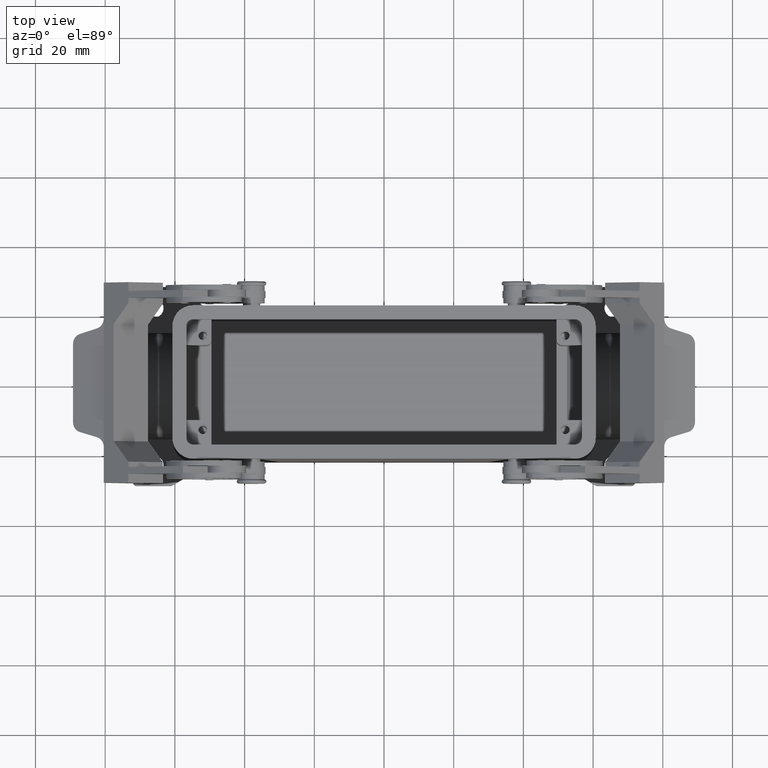
[diagram: clean part render]
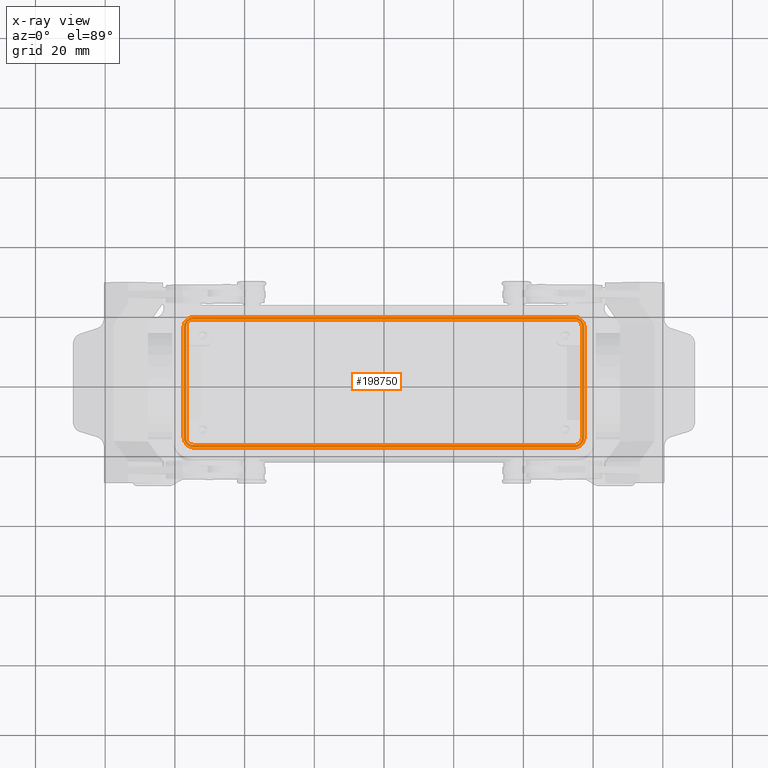
[diagram: x-ray — body ghosted, one internal face saturated and labeled with its STEP entity id]
A machine part, top view, then the same camera in x-ray: the body is ghosted and one INTERNAL B-rep face — a face not visible from any outside direction — is saturated and labeled: STEP entity #198750.
In plain terms, the highlighted planar face has unit normal (0, 0, 1).
Its self-contained STEP definition (entity closure, byte-faithful):
#88200=CARTESIAN_POINT('',(-57.5,-15.75,23.5));
#88210=VERTEX_POINT('',#88200);
#88240=CARTESIAN_POINT('',(-57.5,-15.75,23.5));
#88250=DIRECTION('',(0.,1.,0.));
#88260=VECTOR('',#88250,31.5);
#88270=LINE('',#88240,#88260);
#88280=CARTESIAN_POINT('',(-57.5,15.75,23.5));
#88290=VERTEX_POINT('',#88280);
#88300=EDGE_CURVE('',#88210,#88290,#88270,.T.);
#181180=CARTESIAN_POINT('',(57.5,15.75,23.5));
#181190=VERTEX_POINT('',#181180);
#181220=CARTESIAN_POINT('',(57.5,15.75,23.5));
#181230=DIRECTION('',(0.,-1.,0.));
#181240=VECTOR('',#181230,31.5);
#181250=LINE('',#181220,#181240);
#181260=CARTESIAN_POINT('',(57.5,-15.75,23.5));
#181270=VERTEX_POINT('',#181260);
#181280=EDGE_CURVE('',#181190,#181270,#181250,.T.);
#182560=CARTESIAN_POINT('',(54.5,-18.75,23.5));
#182570=VERTEX_POINT('',#182560);
#182600=CARTESIAN_POINT('',(54.5,-18.75,23.5));
#182610=DIRECTION('',(-1.,0.,0.));
#182620=VECTOR('',#182610,109.);
#182630=LINE('',#182600,#182620);
#182640=CARTESIAN_POINT('',(-54.5,-18.75,23.5));
#182650=VERTEX_POINT('',#182640);
#182660=EDGE_CURVE('',#182570,#182650,#182630,.T.);
#183010=CARTESIAN_POINT('',(-54.5,-15.75,23.5));
#183020=DIRECTION('',(0.,0.,-1.));
#183030=DIRECTION('',(-1.,0.,0.));
#183040=AXIS2_PLACEMENT_3D('',#183010,#183020,#183030);
#183050=CIRCLE('',#183040,3.);
#183060=EDGE_CURVE('',#182650,#88210,#183050,.T.);
#184070=CARTESIAN_POINT('',(-54.5,18.75,23.5));
#184080=VERTEX_POINT('',#184070);
#184110=CARTESIAN_POINT('',(-54.5,18.75,23.5));
#184120=DIRECTION('',(1.,0.,0.));
#184130=VECTOR('',#184120,109.);
#184140=LINE('',#184110,#184130);
#184150=CARTESIAN_POINT('',(54.5,18.75,23.5));
#184160=VERTEX_POINT('',#184150);
#184170=EDGE_CURVE('',#184080,#184160,#184140,.T.);
#184500=CARTESIAN_POINT('',(54.5,15.75,23.5));
#184510=DIRECTION('',(0.,0.,-1.));
#184520=DIRECTION('',(1.,0.,0.));
#184530=AXIS2_PLACEMENT_3D('',#184500,#184510,#184520);
#184540=CIRCLE('',#184530,3.);
#184550=EDGE_CURVE('',#184160,#181190,#184540,.T.);
#197780=CARTESIAN_POINT('',(1.94289E-15,-4.857226E-16,23.5));
#197790=DIRECTION('',(0.,0.,1.));
#197800=DIRECTION('',(1.,0.,0.));
#197810=AXIS2_PLACEMENT_3D('',#197780,#197790,#197800);
#197820=PLANE('',#197810);
#197830=ORIENTED_EDGE('',*,*,#184170,.T.);
#197840=CARTESIAN_POINT('',(-54.5,15.75,23.5));
#197850=DIRECTION('',(0.,0.,-1.));
#197860=DIRECTION('',(0.,1.,0.));
#197870=AXIS2_PLACEMENT_3D('',#197840,#197850,#197860);
#197880=CIRCLE('',#197870,3.);
#197890=EDGE_CURVE('',#88290,#184080,#197880,.T.);
#197900=ORIENTED_EDGE('',*,*,#197890,.T.);
#197910=ORIENTED_EDGE('',*,*,#88300,.T.);
#197920=ORIENTED_EDGE('',*,*,#183060,.T.);
#197930=ORIENTED_EDGE('',*,*,#182660,.T.);
#197940=CARTESIAN_POINT('',(54.5,-15.75,23.5));
#197950=DIRECTION('',(0.,0.,-1.));
#197960=DIRECTION('',(0.,-1.,0.));
#197970=AXIS2_PLACEMENT_3D('',#197940,#197950,#197960);
#197980=CIRCLE('',#197970,3.);
#197990=EDGE_CURVE('',#181270,#182570,#197980,.T.);
#198000=ORIENTED_EDGE('',*,*,#197990,.T.);
#198010=ORIENTED_EDGE('',*,*,#181280,.T.);
#198020=ORIENTED_EDGE('',*,*,#184550,.T.);
#198030=EDGE_LOOP('',(#198020,#198010,#198000,#197930,#197920,#197910,
#197900,#197830));
#198040=FACE_OUTER_BOUND('',#198030,.T.);
#198050=CARTESIAN_POINT('',(56.75,-16.,23.5));
#198060=DIRECTION('',(0.,1.,0.));
#198070=VECTOR('',#198060,32.);
#198080=LINE('',#198050,#198070);
#198090=CARTESIAN_POINT('',(56.75,-16.,23.5));
#198100=VERTEX_POINT('',#198090);
#198110=CARTESIAN_POINT('',(56.75,16.,23.5));
#198120=VERTEX_POINT('',#198110);
#198130=EDGE_CURVE('',#198100,#198120,#198080,.T.);
#198140=ORIENTED_EDGE('',*,*,#198130,.T.);
#198150=CARTESIAN_POINT('',(54.75,-16.,23.5));
#198160=DIRECTION('',(0.,0.,1.));
#198170=DIRECTION('',(0.,-1.,0.));
#198180=AXIS2_PLACEMENT_3D('',#198150,#198160,#198170);
#198190=CIRCLE('',#198180,2.);
#198200=CARTESIAN_POINT('',(54.75,-18.,23.5));
#198210=VERTEX_POINT('',#198200);
#198220=EDGE_CURVE('',#198210,#198100,#198190,.T.);
#198230=ORIENTED_EDGE('',*,*,#198220,.T.);
#198240=CARTESIAN_POINT('',(-54.75,-18.,23.5));
#198250=DIRECTION('',(1.,0.,0.));
#198260=VECTOR('',#198250,109.5);
#198270=LINE('',#198240,#198260);
#198280=CARTESIAN_POINT('',(-54.75,-18.,23.5));
#198290=VERTEX_POINT('',#198280);
#198300=EDGE_CURVE('',#198290,#198210,#198270,.T.);
#198310=ORIENTED_EDGE('',*,*,#198300,.T.);
#198320=CARTESIAN_POINT('',(-54.75,-16.,23.5));
#198330=DIRECTION('',(0.,0.,1.));
#198340=DIRECTION('',(-1.,0.,0.));
#198350=AXIS2_PLACEMENT_3D('',#198320,#198330,#198340);
#198360=CIRCLE('',#198350,2.);
#198370=CARTESIAN_POINT('',(-56.75,-16.,23.5));
#198380=VERTEX_POINT('',#198370);
#198390=EDGE_CURVE('',#198380,#198290,#198360,.T.);
#198400=ORIENTED_EDGE('',*,*,#198390,.T.);
#198410=CARTESIAN_POINT('',(-56.75,16.,23.5));
#198420=DIRECTION('',(0.,-1.,0.));
#198430=VECTOR('',#198420,32.);
#198440=LINE('',#198410,#198430);
#198450=CARTESIAN_POINT('',(-56.75,16.,23.5));
#198460=VERTEX_POINT('',#198450);
#198470=EDGE_CURVE('',#198460,#198380,#198440,.T.);
#198480=ORIENTED_EDGE('',*,*,#198470,.T.);
#198490=CARTESIAN_POINT('',(-54.75,16.,23.5));
#198500=DIRECTION('',(0.,0.,1.));
#198510=DIRECTION('',(0.,1.,0.));
#198520=AXIS2_PLACEMENT_3D('',#198490,#198500,#198510);
#198530=CIRCLE('',#198520,2.);
#198540=CARTESIAN_POINT('',(-54.75,18.,23.5));
#198550=VERTEX_POINT('',#198540);
#198560=EDGE_CURVE('',#198550,#198460,#198530,.T.);
#198570=ORIENTED_EDGE('',*,*,#198560,.T.);
#198580=CARTESIAN_POINT('',(54.75,18.,23.5));
#198590=DIRECTION('',(-1.,0.,0.));
#198600=VECTOR('',#198590,109.5);
#198610=LINE('',#198580,#198600);
#198620=CARTESIAN_POINT('',(54.75,18.,23.5));
#198630=VERTEX_POINT('',#198620);
#198640=EDGE_CURVE('',#198630,#198550,#198610,.T.);
#198650=ORIENTED_EDGE('',*,*,#198640,.T.);
#198660=CARTESIAN_POINT('',(54.75,16.,23.5));
#198670=DIRECTION('',(0.,0.,1.));
#198680=DIRECTION('',(1.,0.,0.));
#198690=AXIS2_PLACEMENT_3D('',#198660,#198670,#198680);
#198700=CIRCLE('',#198690,2.);
#198710=EDGE_CURVE('',#198120,#198630,#198700,.T.);
#198720=ORIENTED_EDGE('',*,*,#198710,.T.);
#198730=EDGE_LOOP('',(#198720,#198650,#198570,#198480,#198400,#198310,
#198230,#198140));
#198740=FACE_BOUND('',#198730,.T.);
#198750=ADVANCED_FACE('',(#198040,#198740),#197820,.F.);